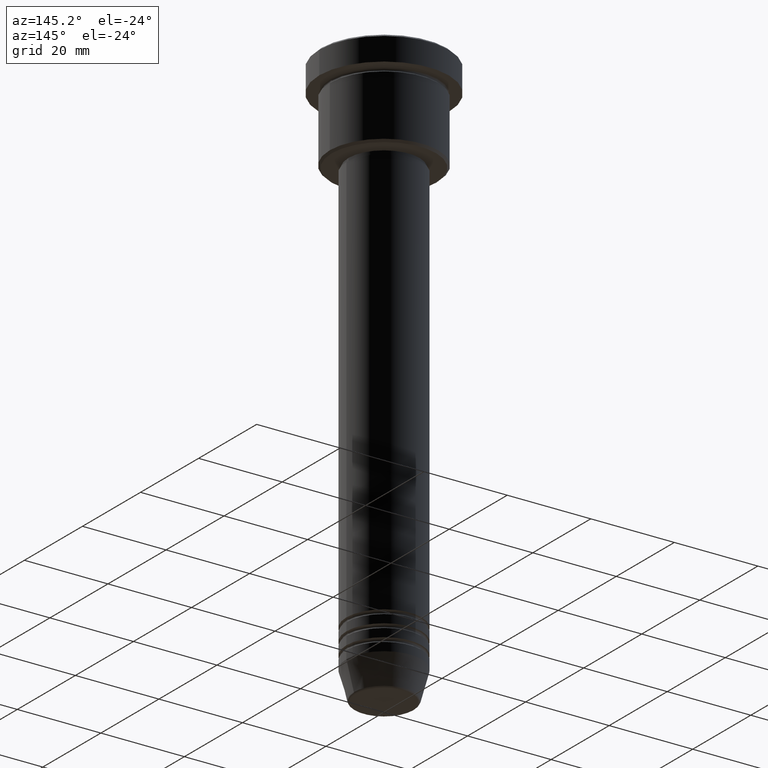
[diagram: clean part render]
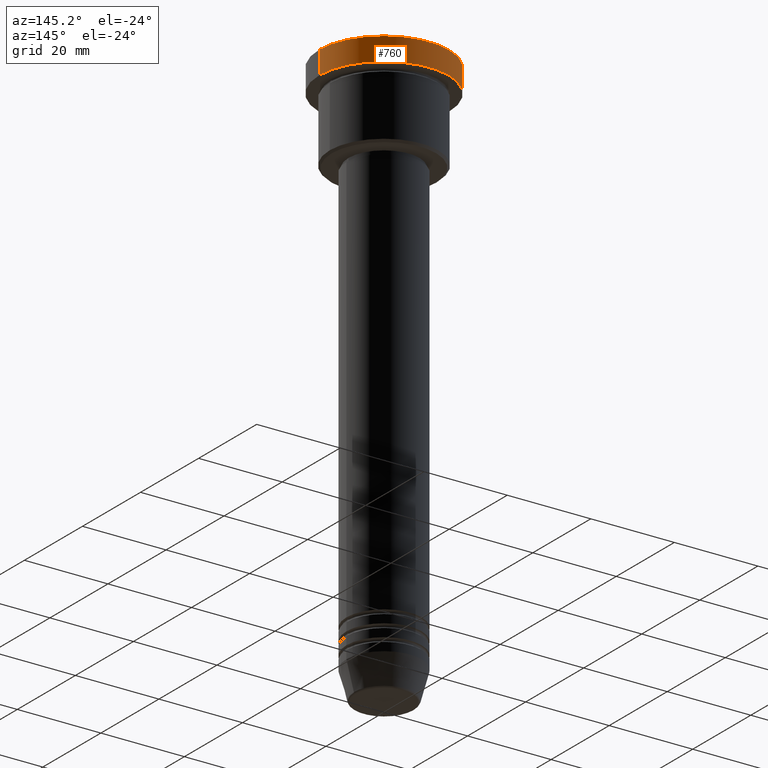
[diagram: same view with one face highlighted and labeled with its STEP entity id]
A machine part, auxiliary view. The second image highlights one B-rep face of the part: STEP entity #760.
In plain terms, the highlighted cylindrical surface (partial cylindrical patch) has radius 15.5 mm, axis along (-0, -0, 1).
Its self-contained STEP definition (entity closure, byte-faithful):
#37 = EDGE_LOOP ( 'NONE', ( #643, #1108, #815, #872 ) ) ;
#58 = FACE_OUTER_BOUND ( 'NONE', #37, .T. ) ;
#130 = VERTEX_POINT ( 'NONE', #344 ) ;
#138 = AXIS2_PLACEMENT_3D ( 'NONE', #990, #1006, #539 ) ;
#141 = CARTESIAN_POINT ( 'NONE',  ( 0.000000000000000000, 0.000000000000000000, -5.999999999999995559 ) ) ;
#155 = CARTESIAN_POINT ( 'NONE',  ( -15.50000000000000000, 1.898202538678397557E-15, -0.5000000000000264233 ) ) ;
#156 = EDGE_CURVE ( 'NONE', #763, #1037, #1175, .T. ) ;
#232 = VECTOR ( 'NONE', #1133, 1000.000000000000000 ) ;
#301 = CARTESIAN_POINT ( 'NONE',  ( 15.50000000000000000, 0.000000000000000000, 0.000000000000000000 ) ) ;
#316 = DIRECTION ( 'NONE',  ( 1.000000000000000000, 0.000000000000000000, 0.000000000000000000 ) ) ;
#330 = DIRECTION ( 'NONE',  ( -0.000000000000000000, -0.000000000000000000, 1.000000000000000000 ) ) ;
#332 = CARTESIAN_POINT ( 'NONE',  ( -15.50000000000000000, 1.898202538678397557E-15, 0.000000000000000000 ) ) ;
#343 = DIRECTION ( 'NONE',  ( -0.000000000000000000, -0.000000000000000000, 1.000000000000000000 ) ) ;
#344 = CARTESIAN_POINT ( 'NONE',  ( 15.50000000000000000, 0.000000000000000000, -5.999999999999995559 ) ) ;
#377 = AXIS2_PLACEMENT_3D ( 'NONE', #141, #330, #316 ) ;
#420 = CYLINDRICAL_SURFACE ( 'NONE', #959, 15.50000000000000000 ) ;
#514 = LINE ( 'NONE', #332, #232 ) ;
#520 = EDGE_CURVE ( 'NONE', #130, #1011, #764, .T. ) ;
#539 = DIRECTION ( 'NONE',  ( 1.000000000000000000, 0.000000000000000000, 0.000000000000000000 ) ) ;
#638 = CARTESIAN_POINT ( 'NONE',  ( -15.50000000000000000, 1.898202538678397557E-15, -5.999999999999995559 ) ) ;
#643 = ORIENTED_EDGE ( 'NONE', *, *, #520, .T. ) ;
#656 = EDGE_CURVE ( 'NONE', #130, #1037, #744, .T. ) ;
#684 = DIRECTION ( 'NONE',  ( 1.000000000000000000, 0.000000000000000000, 0.000000000000000000 ) ) ;
#710 = EDGE_CURVE ( 'NONE', #1011, #763, #514, .T. ) ;
#744 = LINE ( 'NONE', #301, #1139 ) ;
#760 = ADVANCED_FACE ( 'NONE', ( #58 ), #420, .T. ) ;
#763 = VERTEX_POINT ( 'NONE', #155 ) ;
#764 = CIRCLE ( 'NONE', #377, 15.50000000000000000 ) ;
#815 = ORIENTED_EDGE ( 'NONE', *, *, #156, .T. ) ;
#872 = ORIENTED_EDGE ( 'NONE', *, *, #656, .F. ) ;
#959 = AXIS2_PLACEMENT_3D ( 'NONE', #1149, #343, #684 ) ;
#990 = CARTESIAN_POINT ( 'NONE',  ( 0.000000000000000000, 0.000000000000000000, -0.5000000000000264233 ) ) ;
#999 = CARTESIAN_POINT ( 'NONE',  ( 15.50000000000000000, 0.000000000000000000, -0.5000000000000264233 ) ) ;
#1006 = DIRECTION ( 'NONE',  ( 0.000000000000000000, 0.000000000000000000, -1.000000000000000000 ) ) ;
#1011 = VERTEX_POINT ( 'NONE', #638 ) ;
#1024 = DIRECTION ( 'NONE',  ( -0.000000000000000000, -0.000000000000000000, 1.000000000000000000 ) ) ;
#1037 = VERTEX_POINT ( 'NONE', #999 ) ;
#1108 = ORIENTED_EDGE ( 'NONE', *, *, #710, .T. ) ;
#1133 = DIRECTION ( 'NONE',  ( -0.000000000000000000, -0.000000000000000000, 1.000000000000000000 ) ) ;
#1139 = VECTOR ( 'NONE', #1024, 1000.000000000000000 ) ;
#1149 = CARTESIAN_POINT ( 'NONE',  ( 0.000000000000000000, 0.000000000000000000, 0.000000000000000000 ) ) ;
#1175 = CIRCLE ( 'NONE', #138, 15.50000000000000000 ) ;